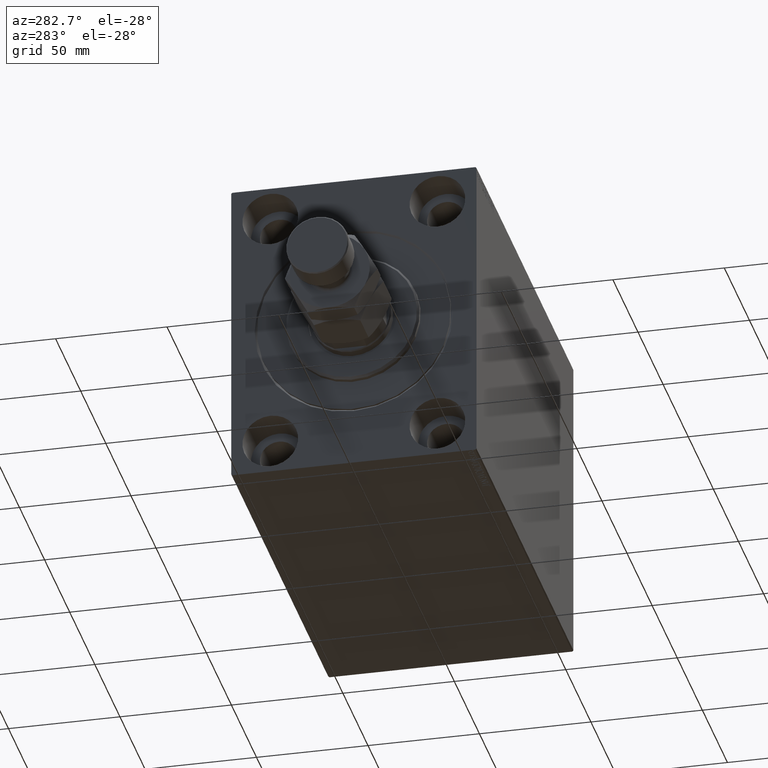
[diagram: clean part render]
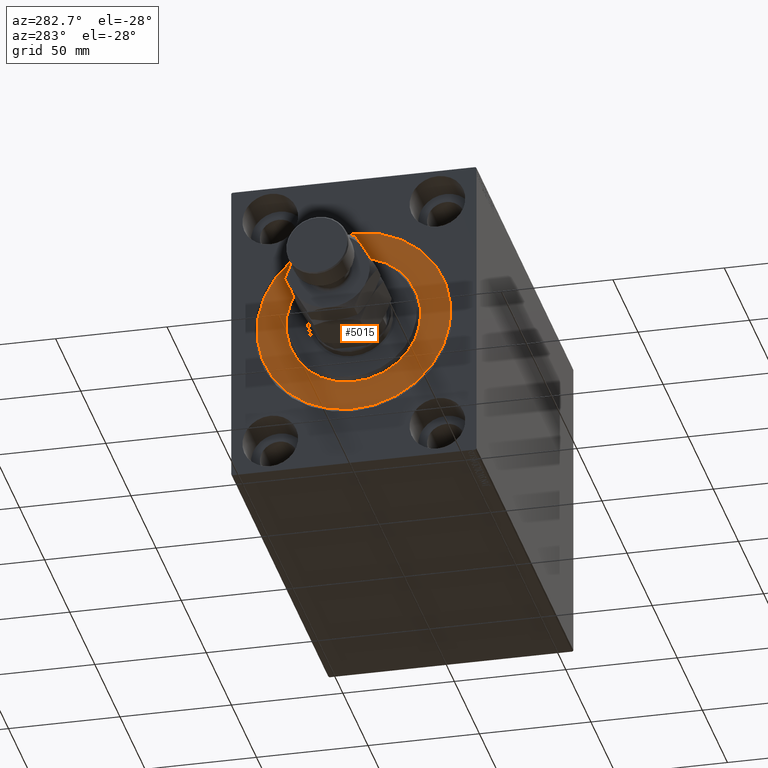
[diagram: same view with one face highlighted and labeled with its STEP entity id]
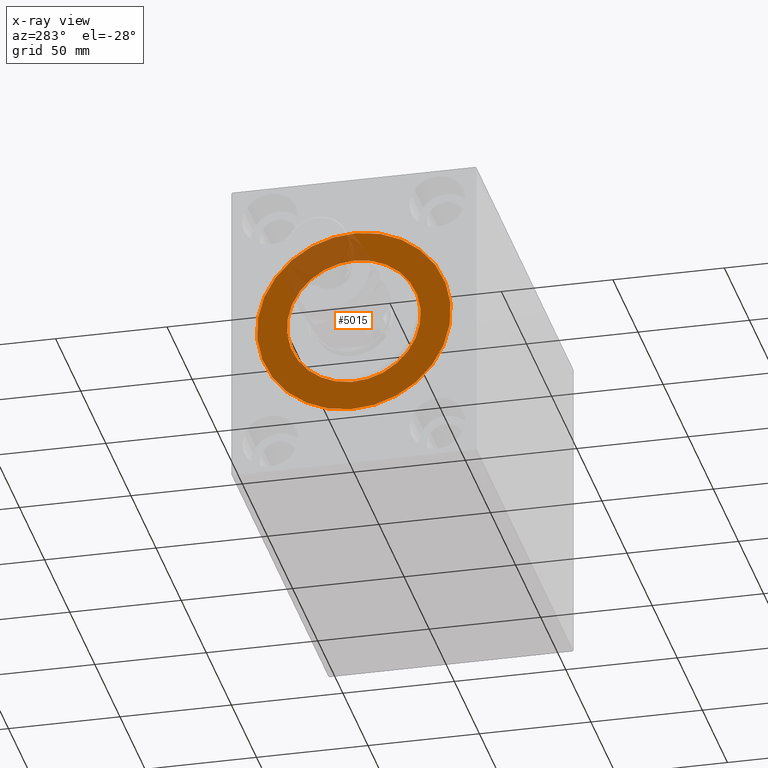
[diagram: x-ray of the same camera — body ghosted, the highlighted face saturated]
A machine part, auxiliary view. The second image highlights one B-rep face of the part: STEP entity #5015.
The next image is the same camera in x-ray: the body ghosted, the highlighted face saturated — about 16% of this face is hidden behind the body in this view.
In plain terms, the highlighted planar face has unit normal (1, 0, -0).
Its self-contained STEP definition (entity closure, byte-faithful):
#803 = EDGE_CURVE ( 'NONE', #40235, #11556, #14267, .T. ) ;
#3706 = EDGE_CURVE ( 'NONE', #33980, #29717, #7704, .T. ) ;
#5015 = ADVANCED_FACE ( 'NONE', ( #16508, #27330 ), #19734, .F. ) ;
#5936 = DIRECTION ( 'NONE',  ( -1.000000000000000000, 0.000000000000000000, 0.000000000000000000 ) ) ;
#6087 = CARTESIAN_POINT ( 'NONE',  ( 0.000000000000000000, 0.000000000000000000, 30.00000000000000000 ) ) ;
#7382 = EDGE_LOOP ( 'NONE', ( #13930, #25667 ) ) ;
#7704 = CIRCLE ( 'NONE', #26095, 30.00000000000000000 ) ;
#8404 = DIRECTION ( 'NONE',  ( -1.000000000000000000, 0.000000000000000000, 0.000000000000000000 ) ) ;
#8636 = CARTESIAN_POINT ( 'NONE',  ( 0.000000000000000000, 5.327213576290986044E-15, 43.50000000000000000 ) ) ;
#8804 = EDGE_CURVE ( 'NONE', #11556, #40235, #13619, .T. ) ;
#10292 = DIRECTION ( 'NONE',  ( -1.000000000000000000, 0.000000000000000000, 0.000000000000000000 ) ) ;
#11235 = CARTESIAN_POINT ( 'NONE',  ( 0.000000000000000000, 0.000000000000000000, -43.50000000000000000 ) ) ;
#11556 = VERTEX_POINT ( 'NONE', #8636 ) ;
#11586 = CIRCLE ( 'NONE', #21148, 30.00000000000000000 ) ;
#12689 = EDGE_CURVE ( 'NONE', #29717, #33980, #11586, .T. ) ;
#13062 = CARTESIAN_POINT ( 'NONE',  ( 0.000000000000000000, 0.000000000000000000, 0.000000000000000000 ) ) ;
#13619 = CIRCLE ( 'NONE', #31266, 43.50000000000000000 ) ;
#13930 = ORIENTED_EDGE ( 'NONE', *, *, #803, .F. ) ;
#14267 = CIRCLE ( 'NONE', #20147, 43.50000000000000000 ) ;
#14808 = DIRECTION ( 'NONE',  ( 1.000000000000000000, -0.000000000000000000, 0.000000000000000000 ) ) ;
#15476 = DIRECTION ( 'NONE',  ( 1.000000000000000000, -0.000000000000000000, 0.000000000000000000 ) ) ;
#16508 = FACE_BOUND ( 'NONE', #29562, .T. ) ;
#18104 = CARTESIAN_POINT ( 'NONE',  ( 0.000000000000000000, 0.000000000000000000, 0.000000000000000000 ) ) ;
#19734 = PLANE ( 'NONE',  #42287 ) ;
#20147 = AXIS2_PLACEMENT_3D ( 'NONE', #18104, #10292, #24796 ) ;
#21148 = AXIS2_PLACEMENT_3D ( 'NONE', #28627, #14808, #28851 ) ;
#22443 = DIRECTION ( 'NONE',  ( 0.000000000000000000, 0.000000000000000000, 1.000000000000000000 ) ) ;
#22615 = DIRECTION ( 'NONE',  ( 0.000000000000000000, 0.000000000000000000, -1.000000000000000000 ) ) ;
#23657 = DIRECTION ( 'NONE',  ( 0.000000000000000000, 0.000000000000000000, 1.000000000000000000 ) ) ;
#24796 = DIRECTION ( 'NONE',  ( 0.000000000000000000, 0.000000000000000000, 1.000000000000000000 ) ) ;
#25667 = ORIENTED_EDGE ( 'NONE', *, *, #8804, .F. ) ;
#26095 = AXIS2_PLACEMENT_3D ( 'NONE', #29297, #15476, #22615 ) ;
#26556 = ORIENTED_EDGE ( 'NONE', *, *, #3706, .F. ) ;
#27330 = FACE_OUTER_BOUND ( 'NONE', #7382, .T. ) ;
#28627 = CARTESIAN_POINT ( 'NONE',  ( 0.000000000000000000, 0.000000000000000000, 0.000000000000000000 ) ) ;
#28851 = DIRECTION ( 'NONE',  ( 0.000000000000000000, 0.000000000000000000, -1.000000000000000000 ) ) ;
#29297 = CARTESIAN_POINT ( 'NONE',  ( 0.000000000000000000, 0.000000000000000000, 0.000000000000000000 ) ) ;
#29562 = EDGE_LOOP ( 'NONE', ( #45474, #26556 ) ) ;
#29579 = CARTESIAN_POINT ( 'NONE',  ( 0.000000000000000000, 0.000000000000000000, 0.000000000000000000 ) ) ;
#29717 = VERTEX_POINT ( 'NONE', #6087 ) ;
#31266 = AXIS2_PLACEMENT_3D ( 'NONE', #29579, #8404, #22443 ) ;
#33980 = VERTEX_POINT ( 'NONE', #43640 ) ;
#40235 = VERTEX_POINT ( 'NONE', #11235 ) ;
#42287 = AXIS2_PLACEMENT_3D ( 'NONE', #13062, #5936, #23657 ) ;
#43640 = CARTESIAN_POINT ( 'NONE',  ( 0.000000000000000000, 3.673940397442059178E-15, -30.00000000000000000 ) ) ;
#45474 = ORIENTED_EDGE ( 'NONE', *, *, #12689, .F. ) ;